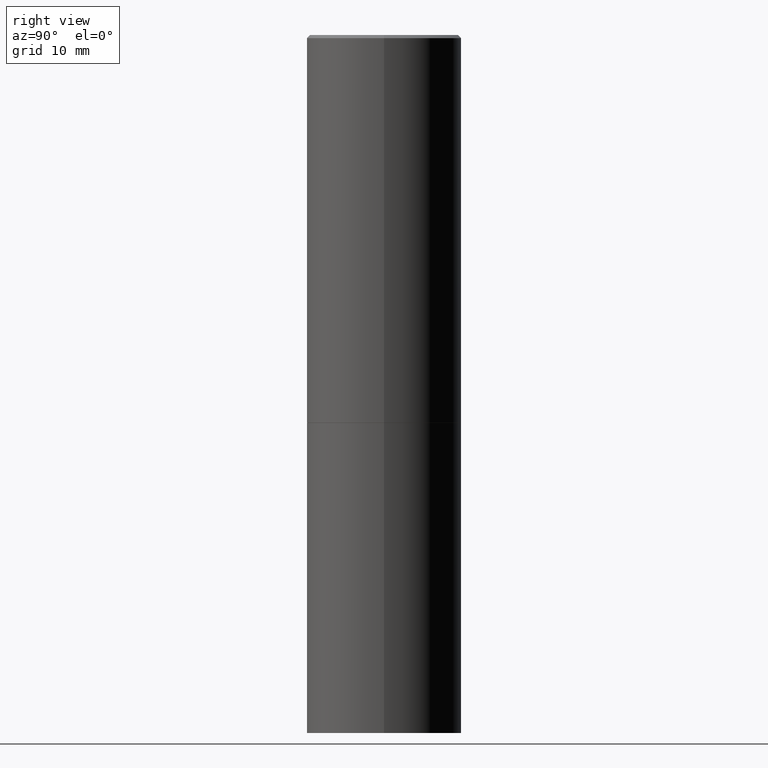
[diagram: clean part render]
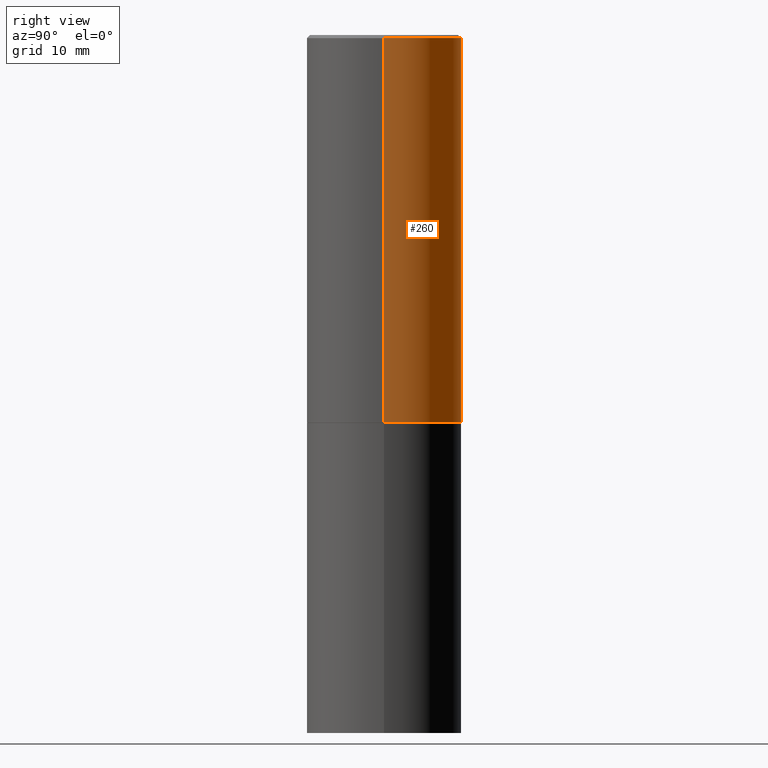
[diagram: same view with one face highlighted and labeled with its STEP entity id]
A machine part, right view. The second image highlights one B-rep face of the part: STEP entity #260.
In plain terms, the highlighted cylindrical surface (partial cylindrical patch) has radius 12.7 mm, axis along (-0, 0, 1).
Its self-contained STEP definition (entity closure, byte-faithful):
#2 = LINE ( 'NONE', #251, #241 ) ;
#3 = EDGE_CURVE ( 'NONE', #66, #364, #263, .T. ) ;
#9 = ORIENTED_EDGE ( 'NONE', *, *, #125, .F. ) ;
#26 = CARTESIAN_POINT ( 'NONE',  ( 6.111226546656657010E-29, -8.725211865769021935E-15, -2.499000000000000110 ) ) ;
#27 = DIRECTION ( 'NONE',  ( -2.445468806185136597E-29, 3.491481338843145583E-15, 1.000000000000000000 ) ) ;
#30 = DIRECTION ( 'NONE',  ( -2.445468806185136597E-29, 3.491481338843145583E-15, 1.000000000000000000 ) ) ;
#41 = DIRECTION ( 'NONE',  ( 1.000000000000000000, -6.982962677686266711E-15, 0.000000000000000000 ) ) ;
#50 = CARTESIAN_POINT ( 'NONE',  ( 0.000000000000000000, 0.000000000000000000, 0.000000000000000000 ) ) ;
#66 = VERTEX_POINT ( 'NONE', #269 ) ;
#67 = CARTESIAN_POINT ( 'NONE',  ( -0.5000000000000000000, -8.448070674724411945E-16, -2.499000000000000110 ) ) ;
#77 = CARTESIAN_POINT ( 'NONE',  ( 0.5000000000000000000, -1.221669320461215371E-14, -2.499000000000000110 ) ) ;
#85 = CARTESIAN_POINT ( 'NONE',  ( 4.890937612370295054E-31, -6.982962677686322424E-17, -0.02000000000000009062 ) ) ;
#93 = VERTEX_POINT ( 'NONE', #77 ) ;
#104 = LINE ( 'NONE', #182, #193 ) ;
#105 = CYLINDRICAL_SURFACE ( 'NONE', #349, 0.4999999999999998335 ) ;
#108 = AXIS2_PLACEMENT_3D ( 'NONE', #26, #133, #250 ) ;
#125 = EDGE_CURVE ( 'NONE', #93, #66, #2, .T. ) ;
#133 = DIRECTION ( 'NONE',  ( -2.445468806185136597E-29, 3.491481338843145583E-15, 1.000000000000000000 ) ) ;
#159 = EDGE_CURVE ( 'NONE', #93, #195, #297, .T. ) ;
#169 = ORIENTED_EDGE ( 'NONE', *, *, #255, .T. ) ;
#182 = CARTESIAN_POINT ( 'NONE',  ( -0.4999999999999998335, 3.552713678800499746E-15, -2.459467545127452330E-29 ) ) ;
#185 = DIRECTION ( 'NONE',  ( -2.445468806185136877E-29, 3.491481338843145188E-15, 1.000000000000000000 ) ) ;
#191 = ORIENTED_EDGE ( 'NONE', *, *, #3, .F. ) ;
#193 = VECTOR ( 'NONE', #185, 39.37007874015748143 ) ;
#194 = DIRECTION ( 'NONE',  ( -2.445468806185136877E-29, 3.491481338843145188E-15, 1.000000000000000000 ) ) ;
#195 = VERTEX_POINT ( 'NONE', #67 ) ;
#218 = DIRECTION ( 'NONE',  ( 1.000000000000000000, -6.982962677686267499E-15, 4.876176775795936353E-29 ) ) ;
#241 = VECTOR ( 'NONE', #194, 39.37007874015748143 ) ;
#250 = DIRECTION ( 'NONE',  ( 1.000000000000000000, -6.982962677686265133E-15, 0.000000000000000000 ) ) ;
#251 = CARTESIAN_POINT ( 'NONE',  ( 0.4999999999999998335, -3.491481338843132566E-15, 2.438088387897967336E-29 ) ) ;
#255 = EDGE_CURVE ( 'NONE', #195, #364, #104, .T. ) ;
#260 = ADVANCED_FACE ( 'NONE', ( #317 ), #105, .T. ) ;
#263 = CIRCLE ( 'NONE', #290, 0.4999999999999996669 ) ;
#269 = CARTESIAN_POINT ( 'NONE',  ( 0.4999999999999996669, -3.500078625662626713E-15, -0.02000000000000009062 ) ) ;
#290 = AXIS2_PLACEMENT_3D ( 'NONE', #85, #30, #41 ) ;
#297 = CIRCLE ( 'NONE', #108, 0.5000000000000000000 ) ;
#300 = EDGE_LOOP ( 'NONE', ( #328, #169, #191, #9 ) ) ;
#317 = FACE_OUTER_BOUND ( 'NONE', #300, .T. ) ;
#328 = ORIENTED_EDGE ( 'NONE', *, *, #159, .T. ) ;
#349 = AXIS2_PLACEMENT_3D ( 'NONE', #50, #27, #218 ) ;
#364 = VERTEX_POINT ( 'NONE', #365 ) ;
#365 = CARTESIAN_POINT ( 'NONE',  ( -0.4999999999999996669, 3.421651712066267691E-15, -0.02000000000000009062 ) ) ;